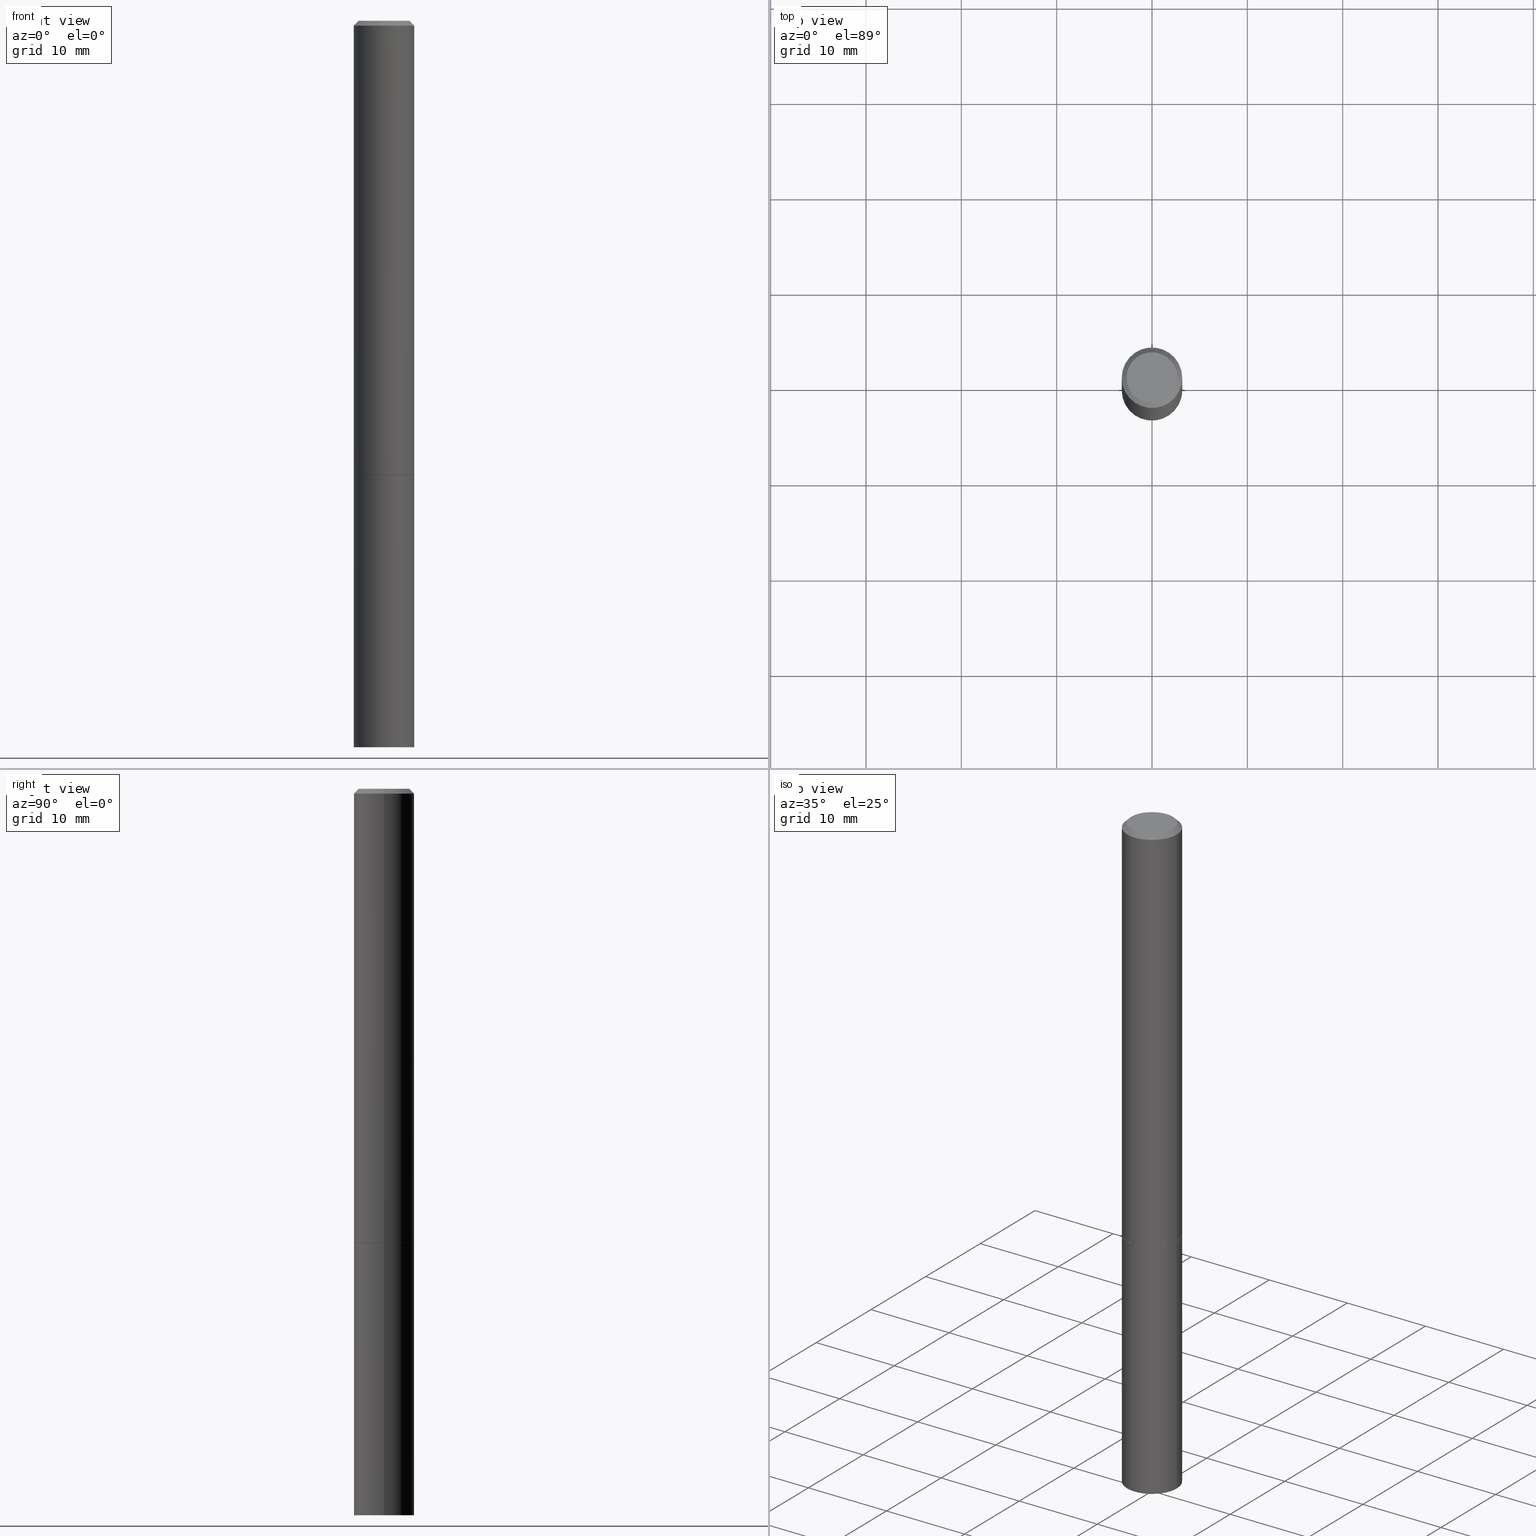
[diagram: canonical four-view strip — front | top / right | iso, engineering-drawing reading convention]
A machine part, canonical four-view strip (front | top / right | iso — engineering-drawing reading convention). The complete STEP part file that produces these views, byte-faithful:
ISO-10303-21;
HEADER;
FILE_DESCRIPTION (( 'STEP AP203' ),
    '1' );
FILE_NAME ('33103.STEP',
    '2023-03-21T20:37:21',
    ( '' ),
    ( '' ),
    'SwSTEP 2.0',
    'SolidWorks 2022',
    '' );
FILE_SCHEMA (( 'CONFIG_CONTROL_DESIGN' ));
ENDSEC;

DATA;
#1 = DIRECTION ( 'NONE',  ( 1.000000000000000000, -6.982962677686270655E-15, 0.000000000000000000 ) ) ;
#2 = DIRECTION ( 'NONE',  ( -2.445468806185136597E-29, 3.491481338843145583E-15, 1.000000000000000000 ) ) ;
#3 = CARTESIAN_POINT ( 'NONE',  ( 0.1249999999999998751, -8.728703347107825500E-16, 6.095220969744913435E-30 ) ) ;
#4 = CONICAL_SURFACE ( 'NONE', #299, 751.2258538476485228, 1.518436449235072372 ) ;
#5 = CC_DESIGN_APPROVAL ( #40, ( #249 ) ) ;
#6 = APPROVAL_ROLE ( '' ) ;
#7 = ADVANCED_FACE ( 'NONE', ( #46 ), #330, .F. ) ;
#8 = LINE ( 'NONE', #282, #194 ) ;
#9 = PERSON_AND_ORGANIZATION_ROLE ( 'creator' ) ;
#10 = CARTESIAN_POINT ( 'NONE',  ( 7.320451092622573053E-29, -1.045147851714139788E-14, -2.993449027589620837 ) ) ;
#11 = DATE_TIME_ROLE ( 'creation_date' ) ;
#12 = EDGE_CURVE ( 'NONE', #108, #20, #263, .T. ) ;
#13 = PERSON_AND_ORGANIZATION ( #338, #180 ) ;
#14 = AXIS2_PLACEMENT_3D ( 'NONE', #243, #231, #120 ) ;
#15 = VECTOR ( 'NONE', #210, 39.37007874015748854 ) ;
#16 = CARTESIAN_POINT ( 'NONE',  ( 0.1249999999999997918, -1.133200626625087780E-14, -3.000000000000000444 ) ) ;
#17 = DIRECTION ( 'NONE',  ( -2.445468806185136597E-29, 3.491481338843145583E-15, 1.000000000000000000 ) ) ;
#18 = FACE_OUTER_BOUND ( 'NONE', #72, .T. ) ;
#19 = FACE_OUTER_BOUND ( 'NONE', #244, .T. ) ;
#20 = VERTEX_POINT ( 'NONE', #206 ) ;
#21 = DIRECTION ( 'NONE',  ( -1.000000000000000000, 6.982962677686265922E-15, -4.876176775795935793E-29 ) ) ;
#22 = CARTESIAN_POINT ( 'NONE',  ( -0.1249999999999998751, 8.881784197001243449E-16, -6.148668862818626622E-30 ) ) ;
#23 = EDGE_LOOP ( 'NONE', ( #36, #183, #211, #337 ) ) ;
#24 = CARTESIAN_POINT ( 'NONE',  ( 0.000000000000000000, 0.000000000000000000, 0.000000000000000000 ) ) ;
#25 = CYLINDRICAL_SURFACE ( 'NONE', #360, 0.1249999999999998751 ) ;
#26 = CARTESIAN_POINT ( 'NONE',  ( 9.290146599697772745E-20, -1.045157141860732138E-14, -2.993449027589620837 ) ) ;
#27 = DIRECTION ( 'NONE',  ( -2.445468806185136597E-29, 3.491481338843145583E-15, 1.000000000000000000 ) ) ;
#28 = EDGE_CURVE ( 'NONE', #196, #20, #270, .T. ) ;
#29 = COORDINATED_UNIVERSAL_TIME_OFFSET ( 5, 0, .BEHIND. ) ;
#30 = CARTESIAN_POINT ( 'NONE',  ( 0.1249999999999997641, -9.273918764983027713E-16, -0.02000000000000002470 ) ) ;
#31 = ORIENTED_EDGE ( 'NONE', *, *, #207, .F. ) ;
#32 = PERSON_AND_ORGANIZATION_ROLE ( 'design_owner' ) ;
#33 = ORIENTED_EDGE ( 'NONE', *, *, #179, .T. ) ;
#34 = APPROVAL_DATE_TIME ( #136, #122 ) ;
#35 = ADVANCED_FACE ( 'NONE', ( #200 ), #83, .F. ) ;
#36 = ORIENTED_EDGE ( 'NONE', *, *, #12, .T. ) ;
#37 = AXIS2_PLACEMENT_3D ( 'NONE', #172, #334, #116 ) ;
#38 = ORIENTED_EDGE ( 'NONE', *, *, #105, .T. ) ;
#39 = CC_DESIGN_APPROVAL ( #122, ( #326 ) ) ;
#40 = APPROVAL ( #369, 'UNSPECIFIED' ) ;
#41 = ORIENTED_EDGE ( 'NONE', *, *, #300, .T. ) ;
#42 = DESIGN_CONTEXT ( 'detailed design', #353, 'design' ) ;
#43 = ADVANCED_FACE ( 'NONE', ( #273 ), #167, .T. ) ;
#44 = VECTOR ( 'NONE', #348, 39.37007874015748854 ) ;
#45 = DIRECTION ( 'NONE',  ( 1.000000000000000000, -6.982962677686265922E-15, 4.876176775795935793E-29 ) ) ;
#46 = FACE_OUTER_BOUND ( 'NONE', #166, .T. ) ;
#47 = CARTESIAN_POINT ( 'NONE',  ( 4.585254011597131119E-29, -6.546527510330898707E-15, -1.875000000000000000 ) ) ;
#48 = FACE_OUTER_BOUND ( 'NONE', #23, .T. ) ;
#49 = AXIS2_PLACEMENT_3D ( 'NONE', #47, #303, #388 ) ;
#50 = APPROVAL_PERSON_ORGANIZATION ( #131, #122, #6 ) ;
#51 = LINE ( 'NONE', #301, #220 ) ;
#52 = ADVANCED_FACE ( 'NONE', ( #385 ), #4, .F. ) ;
#53 = MANIFOLD_SOLID_BREP ( 'Body-Move/Copy2[1]', #290 ) ;
#54 = CARTESIAN_POINT ( 'NONE',  ( -0.1250000000000000000, 8.881784197001252323E-16, -6.148668862818632227E-30 ) ) ;
#55 = VERTEX_POINT ( 'NONE', #356 ) ;
#56 = DIRECTION ( 'NONE',  ( 1.000000000000000000, -6.982962677686270655E-15, 0.000000000000000000 ) ) ;
#57 = EDGE_LOOP ( 'NONE', ( #324, #289, #118, #294 ) ) ;
#58 = CC_DESIGN_PERSON_AND_ORGANIZATION_ASSIGNMENT ( #13, #9, ( #249 ) ) ;
#59 = VECTOR ( 'NONE', #182, 39.37007874015748143 ) ;
#60 = CARTESIAN_POINT ( 'NONE',  ( 1.035986856759833798E-27, -1.479114666486524272E-13, -42.36352776774710094 ) ) ;
#61 = VERTEX_POINT ( 'NONE', #171 ) ;
#62 = AXIS2_PLACEMENT_3D ( 'NONE', #169, #17, #271 ) ;
#63 = CLOSED_SHELL ( 'NONE', ( #64, #239, #91, #223, #43, #307, #35, #109 ) ) ;
#64 = ADVANCED_FACE ( 'NONE', ( #19 ), #232, .T. ) ;
#65 = CARTESIAN_POINT ( 'NONE',  ( 7.336406418555409790E-29, -1.047444401652943635E-14, -3.000000000000000444 ) ) ;
#66 = MANIFOLD_SOLID_BREP ( 'Body-Move/Copy2[2]', #63 ) ;
#67 = DIRECTION ( 'NONE',  ( 1.000000000000000000, -6.982962677686266711E-15, 4.876176775795935793E-29 ) ) ;
#68 = PERSON_AND_ORGANIZATION ( #338, #180 ) ;
#69 = VECTOR ( 'NONE', #141, 39.37007874015748143 ) ;
#70 = EDGE_CURVE ( 'NONE', #124, #55, #305, .T. ) ;
#71 = PERSON_AND_ORGANIZATION ( #338, #180 ) ;
#72 = EDGE_LOOP ( 'NONE', ( #139, #373, #121, #274 ) ) ;
#73 = VERTEX_POINT ( 'NONE', #117 ) ;
#74 = AXIS2_PLACEMENT_3D ( 'NONE', #379, #201, #331 ) ;
#75 = CONICAL_SURFACE ( 'NONE', #222, 751.2258538476485228, 1.518436449235072372 ) ;
#76 = ORIENTED_EDGE ( 'NONE', *, *, #12, .F. ) ;
#77 = DIMENSIONAL_EXPONENTS ( 1.000000000000000000, 0.000000000000000000, 0.000000000000000000, 0.000000000000000000, 0.000000000000000000, 0.000000000000000000, 0.000000000000000000 ) ;
#78 = CARTESIAN_POINT ( 'NONE',  ( 0.1239999999999999991, -7.412414882363996032E-15, -1.875000000000000000 ) ) ;
#79 = DIRECTION ( 'NONE',  ( -2.445468806185136597E-29, 3.491481338843145583E-15, 1.000000000000000000 ) ) ;
#80 = PRODUCT ( '33103', '33103', '', ( #278 ) ) ;
#81 = LINE ( 'NONE', #329, #69 ) ;
#82 = ORIENTED_EDGE ( 'NONE', *, *, #322, .T. ) ;
#83 = PLANE ( 'NONE',  #37 ) ;
#84 = CIRCLE ( 'NONE', #62, 0.1250000000000000000 ) ;
#85 = DIRECTION ( 'NONE',  ( -2.445468806185136597E-29, 3.491481338843145583E-15, 1.000000000000000000 ) ) ;
#86 = EDGE_CURVE ( 'NONE', #61, #351, #84, .T. ) ;
#87 = CYLINDRICAL_SURFACE ( 'NONE', #233, 0.1250000000000000000 ) ;
#88 = CC_DESIGN_PERSON_AND_ORGANIZATION_ASSIGNMENT ( #68, #96, ( #280 ) ) ;
#89 = CARTESIAN_POINT ( 'NONE',  ( 4.890937612370279289E-31, -6.982962677686299005E-17, -0.02000000000000002470 ) ) ;
#90 = ORIENTED_EDGE ( 'NONE', *, *, #376, .F. ) ;
#91 = ADVANCED_FACE ( 'NONE', ( #18 ), #119, .T. ) ;
#92 = AXIS2_PLACEMENT_3D ( 'NONE', #168, #242, #237 ) ;
#93 = CARTESIAN_POINT ( 'NONE',  ( 0.1250000000000000000, -7.415906363702839039E-15, -1.874000000000000110 ) ) ;
#94 = ORIENTED_EDGE ( 'NONE', *, *, #300, .F. ) ;
#95 = FACE_OUTER_BOUND ( 'NONE', #221, .T. ) ;
#96 = PERSON_AND_ORGANIZATION_ROLE ( 'creator' ) ;
#97 = FACE_OUTER_BOUND ( 'NONE', #57, .T. ) ;
#98 = EDGE_CURVE ( 'NONE', #73, #124, #328, .T. ) ;
#99 = COORDINATED_UNIVERSAL_TIME_OFFSET ( 5, 0, .BEHIND. ) ;
#100 = CARTESIAN_POINT ( 'NONE',  ( 4.585254011597131119E-29, -6.546527510330898707E-15, -1.875000000000000000 ) ) ;
#101 = CIRCLE ( 'NONE', #107, 0.1239999999999999991 ) ;
#102 = VECTOR ( 'NONE', #370, 39.37007874015748854 ) ;
#103 = PERSON_AND_ORGANIZATION ( #338, #180 ) ;
#104 = ORIENTED_EDGE ( 'NONE', *, *, #165, .T. ) ;
#105 = EDGE_CURVE ( 'NONE', #73, #366, #134, .T. ) ;
#106 = EDGE_LOOP ( 'NONE', ( #82, #152, #90, #383 ) ) ;
#107 = AXIS2_PLACEMENT_3D ( 'NONE', #100, #27, #1 ) ;
#108 = VERTEX_POINT ( 'NONE', #16 ) ;
#109 = ADVANCED_FACE ( 'NONE', ( #358 ), #298, .F. ) ;
#110 = CARTESIAN_POINT ( 'NONE',  ( 7.332110811570565452E-16, 0.1049999999999998018, -3.666055405785296038E-16 ) ) ;
#111 = CIRCLE ( 'NONE', #74, 0.1049999999999998018 ) ;
#112 = DIRECTION ( 'NONE',  ( -1.000000000000000000, 6.982962677686266711E-15, 0.000000000000000000 ) ) ;
#113 = DIRECTION ( 'NONE',  ( -0.9986295347545742773, 6.790662755453662155E-15, -0.05233595624293820026 ) ) ;
#114 = DIRECTION ( 'NONE',  ( 1.000000000000000000, -6.982962677686266711E-15, 4.876176775795935793E-29 ) ) ;
#115 = ORIENTED_EDGE ( 'NONE', *, *, #149, .T. ) ;
#116 = DIRECTION ( 'NONE',  ( 1.000000000000000000, -6.982962677686265922E-15, 4.876176775795935793E-29 ) ) ;
#117 = CARTESIAN_POINT ( 'NONE',  ( -0.1250000000000000000, -2.418254408184330717E-15, -1.874000000000000110 ) ) ;
#118 = ORIENTED_EDGE ( 'NONE', *, *, #340, .T. ) ;
#119 = CONICAL_SURFACE ( 'NONE', #202, 0.1249999999999997641, 0.7853981633974466137 ) ;
#120 = DIRECTION ( 'NONE',  ( 1.000000000000000000, -6.982962677686266711E-15, 0.000000000000000000 ) ) ;
#121 = ORIENTED_EDGE ( 'NONE', *, *, #376, .T. ) ;
#122 = APPROVAL ( #254, 'UNSPECIFIED' ) ;
#123 = CYLINDRICAL_SURFACE ( 'NONE', #355, 0.1250000000000000000 ) ;
#124 = VERTEX_POINT ( 'NONE', #275 ) ;
#125 = EDGE_CURVE ( 'NONE', #20, #351, #144, .T. ) ;
#126 = DIRECTION ( 'NONE',  ( 0.7071067811865232589, -2.468850131082003836E-15, 0.7071067811865715536 ) ) ;
#127 = PERSON_AND_ORGANIZATION ( #338, #180 ) ;
#128 = DIRECTION ( 'NONE',  ( -2.445468806185136597E-29, 3.491481338843145583E-15, 1.000000000000000000 ) ) ;
#129 = LOCAL_TIME ( 16, 37, 21.00000000000000000, #219 ) ;
#130 = CARTESIAN_POINT ( 'NONE',  ( 0.000000000000000000, 0.000000000000000000, 0.000000000000000000 ) ) ;
#131 = PERSON_AND_ORGANIZATION ( #338, #180 ) ;
#132 = DIRECTION ( 'NONE',  ( 1.000000000000000000, -6.982962677686262766E-15, 0.000000000000000000 ) ) ;
#133 = ORIENTED_EDGE ( 'NONE', *, *, #322, .F. ) ;
#134 = CIRCLE ( 'NONE', #389, 0.1250000000000000000 ) ;
#135 = AXIS2_PLACEMENT_3D ( 'NONE', #256, #150, #157 ) ;
#136 = DATE_AND_TIME ( #344, #260 ) ;
#137 = VERTEX_POINT ( 'NONE', #78 ) ;
#138 = ADVANCED_FACE ( 'NONE', ( #48 ), #87, .T. ) ;
#139 = ORIENTED_EDGE ( 'NONE', *, *, #149, .F. ) ;
#140 = DIRECTION ( 'NONE',  ( -2.445468806185136597E-29, 3.491481338843145583E-15, 1.000000000000000000 ) ) ;
#141 = DIRECTION ( 'NONE',  ( -2.445468806185136877E-29, 3.491481338843145188E-15, 1.000000000000000000 ) ) ;
#142 = CARTESIAN_POINT ( 'NONE',  ( 1.035986856759833798E-27, -1.479114666486524272E-13, -42.36352776774710094 ) ) ;
#143 = ORIENTED_EDGE ( 'NONE', *, *, #86, .T. ) ;
#144 = LINE ( 'NONE', #54, #314 ) ;
#145 = CARTESIAN_POINT ( 'NONE',  ( 8.728703347108290928E-16, 0.1249999999999934636, -1.875000000000000666 ) ) ;
#146 = DIRECTION ( 'NONE',  ( 0.000000000000000000, 0.000000000000000000, 1.000000000000000000 ) ) ;
#147 = AXIS2_PLACEMENT_3D ( 'NONE', #250, #2, #308 ) ;
#148 = AXIS2_PLACEMENT_3D ( 'NONE', #24, #146, #208 ) ;
#149 = EDGE_CURVE ( 'NONE', #205, #272, #277, .T. ) ;
#150 = DIRECTION ( 'NONE',  ( -2.445468806185136597E-29, 3.491481338843145583E-15, 1.000000000000000000 ) ) ;
#151 = FACE_OUTER_BOUND ( 'NONE', #106, .T. ) ;
#152 = ORIENTED_EDGE ( 'NONE', *, *, #98, .T. ) ;
#153 = DIRECTION ( 'NONE',  ( 1.000000000000000000, -6.982962677686270655E-15, 0.000000000000000000 ) ) ;
#154 = CC_DESIGN_DATE_AND_TIME_ASSIGNMENT ( #350, #287, ( #326 ) ) ;
#155 = PERSON_AND_ORGANIZATION_ROLE ( 'classification_officer' ) ;
#156 = AXIS2_PLACEMENT_3D ( 'NONE', #110, #361, #382 ) ;
#157 = DIRECTION ( 'NONE',  ( 1.000000000000000000, -6.982962677686266711E-15, 0.000000000000000000 ) ) ;
#158 = CALENDAR_DATE ( 2023, 21, 3 ) ;
#159 = DIRECTION ( 'NONE',  ( -2.445468806185136597E-29, 3.491481338843145583E-15, 1.000000000000000000 ) ) ;
#160 = SHAPE_DEFINITION_REPRESENTATION ( #377, #265 ) ;
#161 = VERTEX_POINT ( 'NONE', #378 ) ;
#162 = CIRCLE ( 'NONE', #212, 0.1250000000000000000 ) ;
#163 = APPROVAL ( #311, 'UNSPECIFIED' ) ;
#164 = LENGTH_MEASURE_WITH_UNIT ( LENGTH_MEASURE( 0.02539999999999999897 ), #288 );
#165 = EDGE_CURVE ( 'NONE', #108, #61, #81, .T. ) ;
#166 = EDGE_LOOP ( 'NONE', ( #143, #319 ) ) ;
#167 = CYLINDRICAL_SURFACE ( 'NONE', #375, 0.1249999999999998751 ) ;
#168 = CARTESIAN_POINT ( 'NONE',  ( 7.336406418555409790E-29, -1.047444401652943635E-14, -3.000000000000000444 ) ) ;
#169 = CARTESIAN_POINT ( 'NONE',  ( 4.585254011597131119E-29, -6.546527510330898707E-15, -1.875000000000000000 ) ) ;
#170 = ORIENTED_EDGE ( 'NONE', *, *, #179, .F. ) ;
#171 = CARTESIAN_POINT ( 'NONE',  ( 0.1250000000000000000, -7.419397845041682046E-15, -1.875000000000000000 ) ) ;
#172 = CARTESIAN_POINT ( 'NONE',  ( 4.585254011597131119E-29, -6.546527510330898707E-15, -1.875000000000000000 ) ) ;
#173 = CONICAL_SURFACE ( 'NONE', #248, 0.1249999999999997641, 0.7853981633974466137 ) ;
#174 = APPROVAL_PERSON_ORGANIZATION ( #261, #163, #192 ) ;
#175 = CARTESIAN_POINT ( 'NONE',  ( 0.000000000000000000, 0.000000000000000000, 0.000000000000000000 ) ) ;
#176 = EDGE_CURVE ( 'NONE', #272, #205, #111, .T. ) ;
#177 = DIRECTION ( 'NONE',  ( 1.000000000000000000, -6.982962677686262766E-15, 0.000000000000000000 ) ) ;
#178 = PERSON_AND_ORGANIZATION ( #338, #180 ) ;
#179 = EDGE_CURVE ( 'NONE', #137, #366, #51, .T. ) ;
#180 = ORGANIZATION ( 'UNSPECIFIED', 'UNSPECIFIED', '' ) ;
#181 = DIRECTION ( 'NONE',  ( 2.445468806185136597E-29, -3.491481338843145583E-15, -1.000000000000000000 ) ) ;
#182 = DIRECTION ( 'NONE',  ( -2.445468806185136877E-29, 3.491481338843145188E-15, 1.000000000000000000 ) ) ;
#183 = ORIENTED_EDGE ( 'NONE', *, *, #125, .T. ) ;
#184 = LINE ( 'NONE', #30, #44 ) ;
#185 = APPROVAL_DATE_TIME ( #320, #40 ) ;
#186 = CIRCLE ( 'NONE', #284, 0.1250000000000000000 ) ;
#187 = CARTESIAN_POINT ( 'NONE',  ( 0.000000000000000000, 0.000000000000000000, 0.000000000000000000 ) ) ;
#188 = CALENDAR_DATE ( 2023, 21, 3 ) ;
#189 = CC_DESIGN_DATE_AND_TIME_ASSIGNMENT ( #347, #11, ( #280 ) ) ;
#190 = ORIENTED_EDGE ( 'NONE', *, *, #327, .F. ) ;
#191 = ORIENTED_EDGE ( 'NONE', *, *, #176, .T. ) ;
#192 = APPROVAL_ROLE ( '' ) ;
#193 = CIRCLE ( 'NONE', #197, 0.1250000000000000000 ) ;
#194 = VECTOR ( 'NONE', #365, 39.37007874015748854 ) ;
#195 =( NAMED_UNIT ( * ) PLANE_ANGLE_UNIT ( ) SI_UNIT ( $, .RADIAN. ) );
#196 = VERTEX_POINT ( 'NONE', #10 ) ;
#197 = AXIS2_PLACEMENT_3D ( 'NONE', #65, #245, #132 ) ;
#198 = CARTESIAN_POINT ( 'NONE',  ( 0.000000000000000000, 0.000000000000000000, 0.000000000000000000 ) ) ;
#199 = DIRECTION ( 'NONE',  ( -2.445468806185136877E-29, 3.491481338843145188E-15, 1.000000000000000000 ) ) ;
#200 = FACE_OUTER_BOUND ( 'NONE', #297, .T. ) ;
#201 = DIRECTION ( 'NONE',  ( -2.445468806185136597E-29, 3.491481338843145583E-15, 1.000000000000000000 ) ) ;
#202 = AXIS2_PLACEMENT_3D ( 'NONE', #240, #268, #359 ) ;
#203 =( NAMED_UNIT ( * ) SI_UNIT ( $, .STERADIAN. ) SOLID_ANGLE_UNIT ( ) );
#204 = LOCAL_TIME ( 16, 37, 21.00000000000000000, #29 ) ;
#205 = VERTEX_POINT ( 'NONE', #343 ) ;
#206 = CARTESIAN_POINT ( 'NONE',  ( -0.1249999999999997918, -9.601573681818656170E-15, -3.000000000000000444 ) ) ;
#207 = EDGE_CURVE ( 'NONE', #20, #108, #193, .T. ) ;
#208 = DIRECTION ( 'NONE',  ( 1.000000000000000000, 0.000000000000000000, 0.000000000000000000 ) ) ;
#209 = DIRECTION ( 'NONE',  ( -2.445468806185136597E-29, 3.491481338843145583E-15, 1.000000000000000000 ) ) ;
#210 = DIRECTION ( 'NONE',  ( 0.9986295347545742773, -7.033825938272001856E-15, -0.05233595624293820026 ) ) ;
#211 = ORIENTED_EDGE ( 'NONE', *, *, #86, .F. ) ;
#212 = AXIS2_PLACEMENT_3D ( 'NONE', #312, #286, #153 ) ;
#213 = FACE_OUTER_BOUND ( 'NONE', #215, .T. ) ;
#214 = DIRECTION ( 'NONE',  ( -2.445468806185136597E-29, 3.491481338843145583E-15, 1.000000000000000000 ) ) ;
#215 = EDGE_LOOP ( 'NONE', ( #190, #41, #33, #357 ) ) ;
#216 = APPROVAL_DATE_TIME ( #313, #163 ) ;
#217 = DIRECTION ( 'NONE',  ( -1.000000000000000000, 6.982962677686266711E-15, 0.000000000000000000 ) ) ;
#218 = EDGE_LOOP ( 'NONE', ( #346, #323, #76 ) ) ;
#219 = COORDINATED_UNIVERSAL_TIME_OFFSET ( 5, 0, .BEHIND. ) ;
#220 = VECTOR ( 'NONE', #126, 39.37007874015748854 ) ;
#221 = EDGE_LOOP ( 'NONE', ( #229, #309, #104, #230 ) ) ;
#222 = AXIS2_PLACEMENT_3D ( 'NONE', #60, #181, #345 ) ;
#223 = ADVANCED_FACE ( 'NONE', ( #97 ), #173, .T. ) ;
#224 = PERSON_AND_ORGANIZATION_ROLE ( 'design_supplier' ) ;
#225 = EDGE_LOOP ( 'NONE', ( #191, #115 ) ) ;
#226 = CC_DESIGN_PERSON_AND_ORGANIZATION_ASSIGNMENT ( #71, #155, ( #326 ) ) ;
#227 = VECTOR ( 'NONE', #113, 39.37007874015748854 ) ;
#228 =( GEOMETRIC_REPRESENTATION_CONTEXT ( 3 ) GLOBAL_UNCERTAINTY_ASSIGNED_CONTEXT ( ( #255 ) ) GLOBAL_UNIT_ASSIGNED_CONTEXT ( ( #318, #195, #203 ) ) REPRESENTATION_CONTEXT ( 'NONE', 'WORKASPACE' ) );
#229 = ORIENTED_EDGE ( 'NONE', *, *, #125, .F. ) ;
#230 = ORIENTED_EDGE ( 'NONE', *, *, #267, .F. ) ;
#231 = DIRECTION ( 'NONE',  ( -2.445468806185136597E-29, 3.491481338843145583E-15, 1.000000000000000000 ) ) ;
#232 = CONICAL_SURFACE ( 'NONE', #49, 0.1239999999999999991, 0.7853981633974141952 ) ;
#233 = AXIS2_PLACEMENT_3D ( 'NONE', #238, #140, #114 ) ;
#234 = ORIENTED_EDGE ( 'NONE', *, *, #70, .F. ) ;
#235 = LOCAL_TIME ( 16, 37, 21.00000000000000000, #367 ) ;
#236 = DIRECTION ( 'NONE',  ( 1.000000000000000000, -6.982962677686270655E-15, 0.000000000000000000 ) ) ;
#237 = DIRECTION ( 'NONE',  ( 1.000000000000000000, -6.982962677686262766E-15, 0.000000000000000000 ) ) ;
#238 = CARTESIAN_POINT ( 'NONE',  ( 0.000000000000000000, 0.000000000000000000, 0.000000000000000000 ) ) ;
#239 = ADVANCED_FACE ( 'NONE', ( #151 ), #25, .T. ) ;
#240 = CARTESIAN_POINT ( 'NONE',  ( 4.890937612370279289E-31, -6.982962677686299005E-17, -0.02000000000000002470 ) ) ;
#241 = ORIENTED_EDGE ( 'NONE', *, *, #339, .T. ) ;
#242 = DIRECTION ( 'NONE',  ( -2.445468806185136597E-29, 3.491481338843145583E-15, 1.000000000000000000 ) ) ;
#243 = CARTESIAN_POINT ( 'NONE',  ( 4.890937612370279289E-31, -6.982962677686299005E-17, -0.02000000000000002470 ) ) ;
#244 = EDGE_LOOP ( 'NONE', ( #291, #253, #133, #170 ) ) ;
#245 = DIRECTION ( 'NONE',  ( -2.445468806185136597E-29, 3.491481338843145583E-15, 1.000000000000000000 ) ) ;
#246 = LINE ( 'NONE', #26, #15 ) ;
#247 = APPLICATION_PROTOCOL_DEFINITION ( 'international standard', 'config_control_design', 1994, #353 ) ;
#248 = AXIS2_PLACEMENT_3D ( 'NONE', #89, #279, #217 ) ;
#249 = PRODUCT_DEFINITION_FORMATION_WITH_SPECIFIED_SOURCE ( 'ANY', '', #80, .NOT_KNOWN. ) ;
#250 = CARTESIAN_POINT ( 'NONE',  ( 4.585254011597131119E-29, -6.546527510330898707E-15, -1.875000000000000000 ) ) ;
#251 = COORDINATED_UNIVERSAL_TIME_OFFSET ( 5, 0, .BEHIND. ) ;
#252 = LINE ( 'NONE', #3, #59 ) ;
#253 = ORIENTED_EDGE ( 'NONE', *, *, #327, .T. ) ;
#254 = APPROVAL_STATUS ( 'not_yet_approved' ) ;
#255 = UNCERTAINTY_MEASURE_WITH_UNIT (LENGTH_MEASURE( 1.000000000000000082E-05 ), #318, 'distance_accuracy_value', 'NONE');
#256 = CARTESIAN_POINT ( 'NONE',  ( 4.890937612370279289E-31, -6.982962677686299005E-17, -0.02000000000000002470 ) ) ;
#257 = ORIENTED_EDGE ( 'NONE', *, *, #28, .F. ) ;
#258 = EDGE_CURVE ( 'NONE', #366, #55, #252, .T. ) ;
#259 = ORIENTED_EDGE ( 'NONE', *, *, #98, .F. ) ;
#260 = LOCAL_TIME ( 16, 37, 21.00000000000000000, #99 ) ;
#261 = PERSON_AND_ORGANIZATION ( #338, #180 ) ;
#262 = EDGE_LOOP ( 'NONE', ( #257, #241, #31 ) ) ;
#263 = CIRCLE ( 'NONE', #92, 0.1250000000000000000 ) ;
#264 = CC_DESIGN_APPROVAL ( #163, ( #280 ) ) ;
#265 = ADVANCED_BREP_SHAPE_REPRESENTATION ( '33103', ( #53, #66, #148 ), #228 ) ;
#266 = DIRECTION ( 'NONE',  ( 2.445468806185136597E-29, -3.491481338843145583E-15, -1.000000000000000000 ) ) ;
#267 = EDGE_CURVE ( 'NONE', #351, #61, #186, .T. ) ;
#268 = DIRECTION ( 'NONE',  ( 2.445468806185136597E-29, -3.491481338843145583E-15, -1.000000000000000000 ) ) ;
#269 = AXIS2_PLACEMENT_3D ( 'NONE', #145, #276, #21 ) ;
#270 = LINE ( 'NONE', #380, #227 ) ;
#271 = DIRECTION ( 'NONE',  ( 1.000000000000000000, -6.982962677686262766E-15, 0.000000000000000000 ) ) ;
#272 = VERTEX_POINT ( 'NONE', #310 ) ;
#273 = FACE_OUTER_BOUND ( 'NONE', #386, .T. ) ;
#274 = ORIENTED_EDGE ( 'NONE', *, *, #340, .F. ) ;
#275 = CARTESIAN_POINT ( 'NONE',  ( -0.1249999999999997641, 8.030407079339186601E-16, -0.02000000000000002470 ) ) ;
#276 = DIRECTION ( 'NONE',  ( 2.438088387897960049E-29, -3.491481338843145188E-15, -1.000000000000000000 ) ) ;
#277 = CIRCLE ( 'NONE', #352, 0.1049999999999998018 ) ;
#278 = MECHANICAL_CONTEXT ( 'NONE', #332, 'mechanical' ) ;
#279 = DIRECTION ( 'NONE',  ( 2.445468806185136597E-29, -3.491481338843145583E-15, -1.000000000000000000 ) ) ;
#280 = PRODUCT_DEFINITION ( 'UNKNOWN', '', #249, #42 ) ;
#281 = DIRECTION ( 'NONE',  ( 1.000000000000000000, -6.982962677686267499E-15, 4.876176775795935793E-29 ) ) ;
#282 = CARTESIAN_POINT ( 'NONE',  ( -0.1239999999999999991, -5.665454517988374483E-15, -1.875000000000000000 ) ) ;
#283 = CALENDAR_DATE ( 2023, 21, 3 ) ;
#284 = AXIS2_PLACEMENT_3D ( 'NONE', #368, #128, #177 ) ;
#285 = CC_DESIGN_SECURITY_CLASSIFICATION ( #326, ( #249 ) ) ;
#286 = DIRECTION ( 'NONE',  ( -2.445468806185136597E-29, 3.491481338843145583E-15, 1.000000000000000000 ) ) ;
#287 = DATE_TIME_ROLE ( 'classification_date' ) ;
#288 =( LENGTH_UNIT ( ) NAMED_UNIT ( * ) SI_UNIT ( $, .METRE. ) );
#289 = ORIENTED_EDGE ( 'NONE', *, *, #176, .F. ) ;
#290 = CLOSED_SHELL ( 'NONE', ( #138, #52, #354, #381, #7 ) ) ;
#291 = ORIENTED_EDGE ( 'NONE', *, *, #317, .T. ) ;
#292 = ORIENTED_EDGE ( 'NONE', *, *, #258, .T. ) ;
#293 = CONICAL_SURFACE ( 'NONE', #147, 0.1239999999999999991, 0.7853981633974141952 ) ;
#294 = ORIENTED_EDGE ( 'NONE', *, *, #70, .T. ) ;
#295 = DIRECTION ( 'NONE',  ( -2.445468806185136877E-29, 3.491481338843145188E-15, 1.000000000000000000 ) ) ;
#296 = DIRECTION ( 'NONE',  ( 1.000000000000000000, -6.982962677686267499E-15, 4.876176775795935793E-29 ) ) ;
#297 = EDGE_LOOP ( 'NONE', ( #374, #94 ) ) ;
#298 = PLANE ( 'NONE',  #156 ) ;
#299 = AXIS2_PLACEMENT_3D ( 'NONE', #142, #266, #112 ) ;
#300 = EDGE_CURVE ( 'NONE', #161, #137, #101, .T. ) ;
#301 = CARTESIAN_POINT ( 'NONE',  ( 0.1239999999999999991, -7.412414882363996032E-15, -1.875000000000000000 ) ) ;
#302 = APPLICATION_PROTOCOL_DEFINITION ( 'international standard', 'config_control_design', 1994, #332 ) ;
#303 = DIRECTION ( 'NONE',  ( -2.445468806185136597E-29, 3.491481338843145583E-15, 1.000000000000000000 ) ) ;
#304 = CARTESIAN_POINT ( 'NONE',  ( 4.585254011597131119E-29, -6.546527510330898707E-15, -1.875000000000000000 ) ) ;
#305 = CIRCLE ( 'NONE', #14, 0.1249999999999997641 ) ;
#306 = CIRCLE ( 'NONE', #135, 0.1249999999999997641 ) ;
#307 = ADVANCED_FACE ( 'NONE', ( #213 ), #293, .T. ) ;
#308 = DIRECTION ( 'NONE',  ( 1.000000000000000000, -6.982962677686270655E-15, 0.000000000000000000 ) ) ;
#309 = ORIENTED_EDGE ( 'NONE', *, *, #207, .T. ) ;
#310 = CARTESIAN_POINT ( 'NONE',  ( -0.1049999999999998018, 7.681258945454876027E-16, -5.249639473182157468E-30 ) ) ;
#311 = APPROVAL_STATUS ( 'not_yet_approved' ) ;
#312 = CARTESIAN_POINT ( 'NONE',  ( 4.582808542790945516E-29, -6.543036028992054911E-15, -1.874000000000000110 ) ) ;
#313 = DATE_AND_TIME ( #349, #235 ) ;
#314 = VECTOR ( 'NONE', #199, 39.37007874015748143 ) ;
#315 = CARTESIAN_POINT ( 'NONE',  ( -0.1249999999999997641, 8.030407079339186601E-16, -0.02000000000000002470 ) ) ;
#316 = APPROVAL_ROLE ( '' ) ;
#317 = EDGE_CURVE ( 'NONE', #137, #161, #325, .T. ) ;
#318 =( CONVERSION_BASED_UNIT ( 'INCH', #164 ) LENGTH_UNIT ( ) NAMED_UNIT ( #77 ) );
#319 = ORIENTED_EDGE ( 'NONE', *, *, #267, .T. ) ;
#320 = DATE_AND_TIME ( #188, #129 ) ;
#321 = VECTOR ( 'NONE', #295, 39.37007874015748143 ) ;
#322 = EDGE_CURVE ( 'NONE', #366, #73, #162, .T. ) ;
#323 = ORIENTED_EDGE ( 'NONE', *, *, #28, .T. ) ;
#324 = ORIENTED_EDGE ( 'NONE', *, *, #387, .F. ) ;
#325 = CIRCLE ( 'NONE', #342, 0.1239999999999999991 ) ;
#326 = SECURITY_CLASSIFICATION ( '', '', #371 ) ;
#327 = EDGE_CURVE ( 'NONE', #161, #73, #8, .T. ) ;
#328 = LINE ( 'NONE', #22, #321 ) ;
#329 = CARTESIAN_POINT ( 'NONE',  ( 0.1250000000000000000, -8.728703347107833388E-16, 6.095220969744919741E-30 ) ) ;
#330 = PLANE ( 'NONE',  #269 ) ;
#331 = DIRECTION ( 'NONE',  ( 1.000000000000000000, -6.982962677686265922E-15, 4.876176775795935793E-29 ) ) ;
#332 = APPLICATION_CONTEXT ( 'configuration controlled 3d designs of mechanical parts and assemblies' ) ;
#333 = CARTESIAN_POINT ( 'NONE',  ( 4.582808542790945516E-29, -6.543036028992054911E-15, -1.874000000000000110 ) ) ;
#334 = DIRECTION ( 'NONE',  ( -2.438088387897960049E-29, 3.491481338843145188E-15, 1.000000000000000000 ) ) ;
#335 = CC_DESIGN_PERSON_AND_ORGANIZATION_ASSIGNMENT ( #178, #32, ( #80 ) ) ;
#336 = DIRECTION ( 'NONE',  ( -2.445468806185136597E-29, 3.491481338843145583E-15, 1.000000000000000000 ) ) ;
#337 = ORIENTED_EDGE ( 'NONE', *, *, #165, .F. ) ;
#338 = PERSON ( 'UNSPECIFIED', 'UNSPECIFIED', 'UNSPECIFIED', ('UNSPECIFIED'), ('UNSPECIFIED'), ('UNSPECIFIED') ) ;
#339 = EDGE_CURVE ( 'NONE', #196, #108, #246, .T. ) ;
#340 = EDGE_CURVE ( 'NONE', #272, #124, #362, .T. ) ;
#341 = FACE_OUTER_BOUND ( 'NONE', #218, .T. ) ;
#342 = AXIS2_PLACEMENT_3D ( 'NONE', #304, #159, #56 ) ;
#343 = CARTESIAN_POINT ( 'NONE',  ( 0.1049999999999998018, -8.238720831321560867E-16, 5.444276250344140956E-30 ) ) ;
#344 = CALENDAR_DATE ( 2023, 21, 3 ) ;
#345 = DIRECTION ( 'NONE',  ( -1.000000000000000000, 6.982962677686266711E-15, 0.000000000000000000 ) ) ;
#346 = ORIENTED_EDGE ( 'NONE', *, *, #339, .F. ) ;
#347 = DATE_AND_TIME ( #158, #204 ) ;
#348 = DIRECTION ( 'NONE',  ( 0.7071067811865462405, -7.319954787623251312E-15, -0.7071067811865486830 ) ) ;
#349 = CALENDAR_DATE ( 2023, 21, 3 ) ;
#350 = DATE_AND_TIME ( #283, #390 ) ;
#351 = VERTEX_POINT ( 'NONE', #363 ) ;
#352 = AXIS2_PLACEMENT_3D ( 'NONE', #198, #209, #45 ) ;
#353 = APPLICATION_CONTEXT ( 'configuration controlled 3d designs of mechanical parts and assemblies' ) ;
#354 = ADVANCED_FACE ( 'NONE', ( #341 ), #75, .F. ) ;
#355 = AXIS2_PLACEMENT_3D ( 'NONE', #130, #214, #67 ) ;
#356 = CARTESIAN_POINT ( 'NONE',  ( 0.1249999999999997641, -9.273918764983027713E-16, -0.02000000000000002470 ) ) ;
#357 = ORIENTED_EDGE ( 'NONE', *, *, #105, .F. ) ;
#358 = FACE_OUTER_BOUND ( 'NONE', #225, .T. ) ;
#359 = DIRECTION ( 'NONE',  ( -1.000000000000000000, 6.982962677686266711E-15, 0.000000000000000000 ) ) ;
#360 = AXIS2_PLACEMENT_3D ( 'NONE', #187, #336, #281 ) ;
#361 = DIRECTION ( 'NONE',  ( 2.438088387897960049E-29, -3.491481338843145188E-15, -1.000000000000000000 ) ) ;
#362 = LINE ( 'NONE', #315, #102 ) ;
#363 = CARTESIAN_POINT ( 'NONE',  ( -0.1250000000000000000, -7.622307343730043087E-15, -1.875000000000000000 ) ) ;
#364 = CC_DESIGN_PERSON_AND_ORGANIZATION_ASSIGNMENT ( #103, #224, ( #249 ) ) ;
#365 = DIRECTION ( 'NONE',  ( -0.7071067811865232589, 7.493145998870265808E-15, 0.7071067811865715536 ) ) ;
#366 = VERTEX_POINT ( 'NONE', #93 ) ;
#367 = COORDINATED_UNIVERSAL_TIME_OFFSET ( 5, 0, .BEHIND. ) ;
#368 = CARTESIAN_POINT ( 'NONE',  ( 4.585254011597131119E-29, -6.546527510330898707E-15, -1.875000000000000000 ) ) ;
#369 = APPROVAL_STATUS ( 'not_yet_approved' ) ;
#370 = DIRECTION ( 'NONE',  ( -0.7071067811865462405, 2.468850131082243650E-15, -0.7071067811865486830 ) ) ;
#371 = SECURITY_CLASSIFICATION_LEVEL ( 'unclassified' ) ;
#372 = APPROVAL_PERSON_ORGANIZATION ( #127, #40, #316 ) ;
#373 = ORIENTED_EDGE ( 'NONE', *, *, #387, .T. ) ;
#374 = ORIENTED_EDGE ( 'NONE', *, *, #317, .F. ) ;
#375 = AXIS2_PLACEMENT_3D ( 'NONE', #175, #85, #296 ) ;
#376 = EDGE_CURVE ( 'NONE', #55, #124, #306, .T. ) ;
#377 = PRODUCT_DEFINITION_SHAPE ( 'NONE', 'NONE',  #280 ) ;
#378 = CARTESIAN_POINT ( 'NONE',  ( -0.1239999999999999991, -5.660156063640151292E-15, -1.875000000000000000 ) ) ;
#379 = CARTESIAN_POINT ( 'NONE',  ( 0.000000000000000000, 0.000000000000000000, 0.000000000000000000 ) ) ;
#380 = CARTESIAN_POINT ( 'NONE',  ( -9.290146585057000160E-20, -1.045157141860732138E-14, -2.993449027589620837 ) ) ;
#381 = ADVANCED_FACE ( 'NONE', ( #95 ), #123, .T. ) ;
#382 = DIRECTION ( 'NONE',  ( -1.000000000000000000, 6.982962677686265922E-15, -4.876176775795935793E-29 ) ) ;
#383 = ORIENTED_EDGE ( 'NONE', *, *, #258, .F. ) ;
#384 = PRODUCT_RELATED_PRODUCT_CATEGORY ( 'detail', '', ( #80 ) ) ;
#385 = FACE_OUTER_BOUND ( 'NONE', #262, .T. ) ;
#386 = EDGE_LOOP ( 'NONE', ( #259, #38, #292, #234 ) ) ;
#387 = EDGE_CURVE ( 'NONE', #205, #55, #184, .T. ) ;
#388 = DIRECTION ( 'NONE',  ( 1.000000000000000000, -6.982962677686270655E-15, 0.000000000000000000 ) ) ;
#389 = AXIS2_PLACEMENT_3D ( 'NONE', #333, #79, #236 ) ;
#390 = LOCAL_TIME ( 16, 37, 21.00000000000000000, #251 ) ;
ENDSEC;
END-ISO-10303-21;
